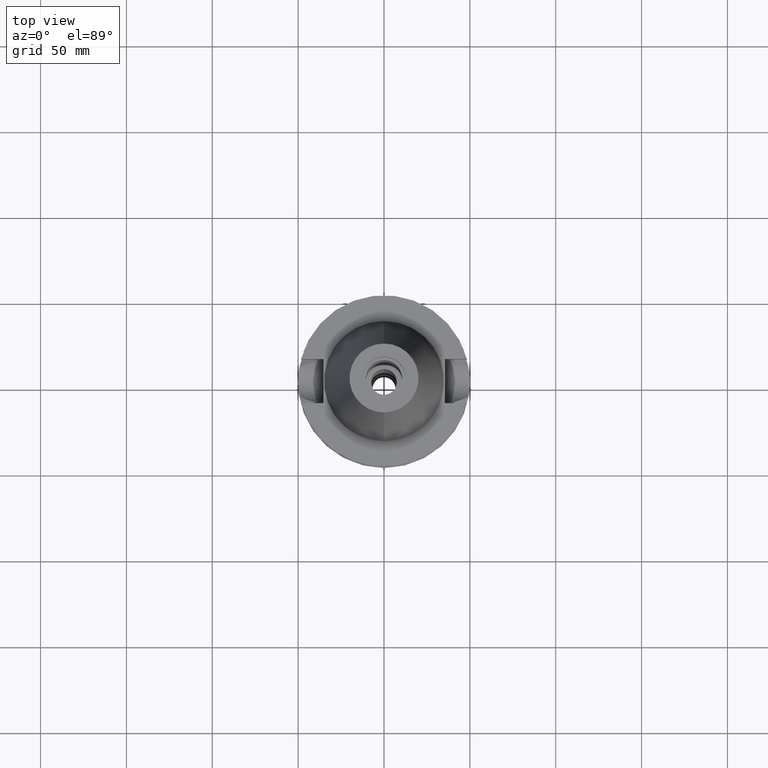
[diagram: clean part render]
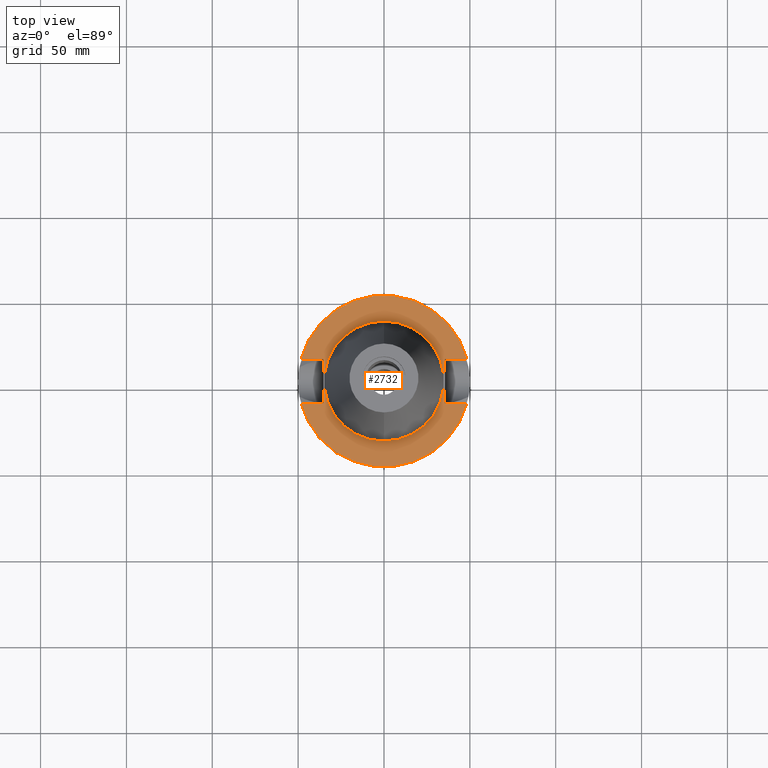
[diagram: same view with one face highlighted and labeled with its STEP entity id]
A machine part, top view. The second image highlights one B-rep face of the part: STEP entity #2732.
In plain terms, the highlighted planar face has unit normal (0, 0, -1).
Its self-contained STEP definition (entity closure, byte-faithful):
#28 = ORIENTED_EDGE ( 'NONE', *, *, #1393, .F. ) ;
#106 = VERTEX_POINT ( 'NONE', #1733 ) ;
#127 = CARTESIAN_POINT ( 'NONE',  ( -35.39999999999999858, -12.84999999999999964, -1.500000000000000000 ) ) ;
#177 = VECTOR ( 'NONE', #1836, 1000.000000000000000 ) ;
#195 = CARTESIAN_POINT ( 'NONE',  ( -48.32057015392000210, 12.84999999999999964, -1.500000000000000000 ) ) ;
#213 = EDGE_CURVE ( 'NONE', #864, #1098, #791, .T. ) ;
#226 = DIRECTION ( 'NONE',  ( 0.0000000000000000000, -1.000000000000000000, 0.0000000000000000000 ) ) ;
#232 = EDGE_LOOP ( 'NONE', ( #1154, #235 ) ) ;
#235 = ORIENTED_EDGE ( 'NONE', *, *, #3048, .F. ) ;
#271 = CARTESIAN_POINT ( 'NONE',  ( 0.0000000000000000000, 2.710633225232999536E-14, -1.500000000000000000 ) ) ;
#280 = DIRECTION ( 'NONE',  ( 0.0000000000000000000, -1.000000000000000000, 0.0000000000000000000 ) ) ;
#291 = EDGE_LOOP ( 'NONE', ( #2047, #780, #3096, #804, #396, #2108, #2639, #28 ) ) ;
#304 = CARTESIAN_POINT ( 'NONE',  ( 0.0000000000000000000, 2.710633225232999536E-14, -1.500000000000000000 ) ) ;
#344 = DIRECTION ( 'NONE',  ( 1.000000000000000000, 0.0000000000000000000, 0.0000000000000000000 ) ) ;
#396 = ORIENTED_EDGE ( 'NONE', *, *, #2787, .T. ) ;
#518 = LINE ( 'NONE', #1531, #2220 ) ;
#519 = EDGE_CURVE ( 'NONE', #1098, #990, #2303, .T. ) ;
#569 = CARTESIAN_POINT ( 'NONE',  ( 0.0000000000000000000, 2.710633225232999536E-14, -1.500000000000000000 ) ) ;
#602 = CARTESIAN_POINT ( 'NONE',  ( -35.39999999999999858, -12.84999999999999964, -1.500000000000000000 ) ) ;
#702 = AXIS2_PLACEMENT_3D ( 'NONE', #304, #2370, #1123 ) ;
#768 = CARTESIAN_POINT ( 'NONE',  ( 48.32057015392000210, -12.84999999999999964, -1.500000000000000000 ) ) ;
#780 = ORIENTED_EDGE ( 'NONE', *, *, #2107, .F. ) ;
#791 = LINE ( 'NONE', #834, #2476 ) ;
#795 = CARTESIAN_POINT ( 'NONE',  ( 35.39999999999999858, 12.84999999999999964, -1.500000000000000000 ) ) ;
#804 = ORIENTED_EDGE ( 'NONE', *, *, #213, .F. ) ;
#813 = DIRECTION ( 'NONE',  ( 0.0000000000000000000, 0.0000000000000000000, -1.000000000000000000 ) ) ;
#831 = EDGE_CURVE ( 'NONE', #106, #907, #2389, .T. ) ;
#834 = CARTESIAN_POINT ( 'NONE',  ( 35.39999999999999858, 12.84999999999999964, -1.500000000000000000 ) ) ;
#864 = VERTEX_POINT ( 'NONE', #3158 ) ;
#902 = AXIS2_PLACEMENT_3D ( 'NONE', #1059, #813, #1103 ) ;
#907 = VERTEX_POINT ( 'NONE', #195 ) ;
#973 = CIRCLE ( 'NONE', #2960, 34.92499999999999716 ) ;
#990 = VERTEX_POINT ( 'NONE', #768 ) ;
#1005 = VERTEX_POINT ( 'NONE', #1030 ) ;
#1030 = CARTESIAN_POINT ( 'NONE',  ( 48.32057015392000210, 12.84999999999999964, -1.500000000000000000 ) ) ;
#1057 = VERTEX_POINT ( 'NONE', #1608 ) ;
#1059 = CARTESIAN_POINT ( 'NONE',  ( 0.0000000000000000000, 1.206277097159999845E-14, -1.500000000000000000 ) ) ;
#1098 = VERTEX_POINT ( 'NONE', #1478 ) ;
#1103 = DIRECTION ( 'NONE',  ( 0.0000000000000000000, -1.000000000000000000, 0.0000000000000000000 ) ) ;
#1123 = DIRECTION ( 'NONE',  ( 0.0000000000000000000, 1.000000000000000000, 0.0000000000000000000 ) ) ;
#1154 = ORIENTED_EDGE ( 'NONE', *, *, #2271, .F. ) ;
#1173 = DIRECTION ( 'NONE',  ( 0.0000000000000000000, 0.0000000000000000000, 1.000000000000000000 ) ) ;
#1329 = LINE ( 'NONE', #795, #1430 ) ;
#1393 = EDGE_CURVE ( 'NONE', #2313, #106, #518, .T. ) ;
#1395 = CARTESIAN_POINT ( 'NONE',  ( -35.39999999999999858, 12.84999999999999964, -1.500000000000000000 ) ) ;
#1430 = VECTOR ( 'NONE', #344, 1000.000000000000000 ) ;
#1478 = CARTESIAN_POINT ( 'NONE',  ( 35.39999999999999858, -12.84999999999999964, -1.500000000000000000 ) ) ;
#1531 = CARTESIAN_POINT ( 'NONE',  ( -35.39999999999999858, -12.84999999999999964, -1.500000000000000000 ) ) ;
#1552 = AXIS2_PLACEMENT_3D ( 'NONE', #569, #2354, #2061 ) ;
#1596 = DIRECTION ( 'NONE',  ( -1.000000000000000000, 0.0000000000000000000, 0.0000000000000000000 ) ) ;
#1608 = CARTESIAN_POINT ( 'NONE',  ( 0.0000000000000000000, -34.92499999999999716, -1.500000000000000000 ) ) ;
#1711 = DIRECTION ( 'NONE',  ( -1.000000000000000000, 0.0000000000000000000, 0.0000000000000000000 ) ) ;
#1733 = CARTESIAN_POINT ( 'NONE',  ( -35.39999999999999858, 12.84999999999999964, -1.500000000000000000 ) ) ;
#1836 = DIRECTION ( 'NONE',  ( 1.000000000000000000, 0.0000000000000000000, 0.0000000000000000000 ) ) ;
#1859 = PLANE ( 'NONE',  #902 ) ;
#1874 = DIRECTION ( 'NONE',  ( 0.0000000000000000000, -1.000000000000000000, 0.0000000000000000000 ) ) ;
#1988 = DIRECTION ( 'NONE',  ( 0.0000000000000000000, 1.000000000000000000, 0.0000000000000000000 ) ) ;
#2037 = CARTESIAN_POINT ( 'NONE',  ( 35.39999999999999858, -12.84999999999999964, -1.500000000000000000 ) ) ;
#2047 = ORIENTED_EDGE ( 'NONE', *, *, #2228, .T. ) ;
#2061 = DIRECTION ( 'NONE',  ( 0.0000000000000000000, 1.000000000000000000, 0.0000000000000000000 ) ) ;
#2107 = EDGE_CURVE ( 'NONE', #990, #2835, #2214, .T. ) ;
#2108 = ORIENTED_EDGE ( 'NONE', *, *, #2266, .F. ) ;
#2111 = CIRCLE ( 'NONE', #702, 50.00000000000000000 ) ;
#2214 = CIRCLE ( 'NONE', #3055, 50.00000000000000000 ) ;
#2220 = VECTOR ( 'NONE', #1988, 1000.000000000000000 ) ;
#2228 = EDGE_CURVE ( 'NONE', #2313, #2835, #2323, .T. ) ;
#2266 = EDGE_CURVE ( 'NONE', #907, #1005, #2111, .T. ) ;
#2271 = EDGE_CURVE ( 'NONE', #3197, #1057, #2957, .T. ) ;
#2303 = LINE ( 'NONE', #2037, #177 ) ;
#2313 = VERTEX_POINT ( 'NONE', #127 ) ;
#2319 = FACE_OUTER_BOUND ( 'NONE', #291, .T. ) ;
#2323 = LINE ( 'NONE', #602, #3213 ) ;
#2335 = FACE_BOUND ( 'NONE', #232, .T. ) ;
#2354 = DIRECTION ( 'NONE',  ( 0.0000000000000000000, 0.0000000000000000000, 1.000000000000000000 ) ) ;
#2370 = DIRECTION ( 'NONE',  ( 0.0000000000000000000, 0.0000000000000000000, -1.000000000000000000 ) ) ;
#2389 = LINE ( 'NONE', #1395, #2998 ) ;
#2436 = CARTESIAN_POINT ( 'NONE',  ( 0.0000000000000000000, 2.710633225232999536E-14, -1.500000000000000000 ) ) ;
#2476 = VECTOR ( 'NONE', #280, 1000.000000000000000 ) ;
#2639 = ORIENTED_EDGE ( 'NONE', *, *, #831, .F. ) ;
#2732 = ADVANCED_FACE ( 'NONE', ( #2319, #2335 ), #1859, .F. ) ;
#2787 = EDGE_CURVE ( 'NONE', #864, #1005, #1329, .T. ) ;
#2791 = CARTESIAN_POINT ( 'NONE',  ( -48.32057015392000210, -12.84999999999999964, -1.500000000000000000 ) ) ;
#2835 = VERTEX_POINT ( 'NONE', #2791 ) ;
#2957 = CIRCLE ( 'NONE', #1552, 34.92499999999999716 ) ;
#2960 = AXIS2_PLACEMENT_3D ( 'NONE', #2436, #1173, #1874 ) ;
#2972 = CARTESIAN_POINT ( 'NONE',  ( 0.0000000000000000000, 34.92499999999999716, -1.500000000000000000 ) ) ;
#2998 = VECTOR ( 'NONE', #1711, 1000.000000000000000 ) ;
#3041 = DIRECTION ( 'NONE',  ( 0.0000000000000000000, 0.0000000000000000000, -1.000000000000000000 ) ) ;
#3048 = EDGE_CURVE ( 'NONE', #1057, #3197, #973, .T. ) ;
#3055 = AXIS2_PLACEMENT_3D ( 'NONE', #271, #3041, #226 ) ;
#3096 = ORIENTED_EDGE ( 'NONE', *, *, #519, .F. ) ;
#3158 = CARTESIAN_POINT ( 'NONE',  ( 35.39999999999999858, 12.84999999999999964, -1.500000000000000000 ) ) ;
#3197 = VERTEX_POINT ( 'NONE', #2972 ) ;
#3213 = VECTOR ( 'NONE', #1596, 1000.000000000000000 ) ;